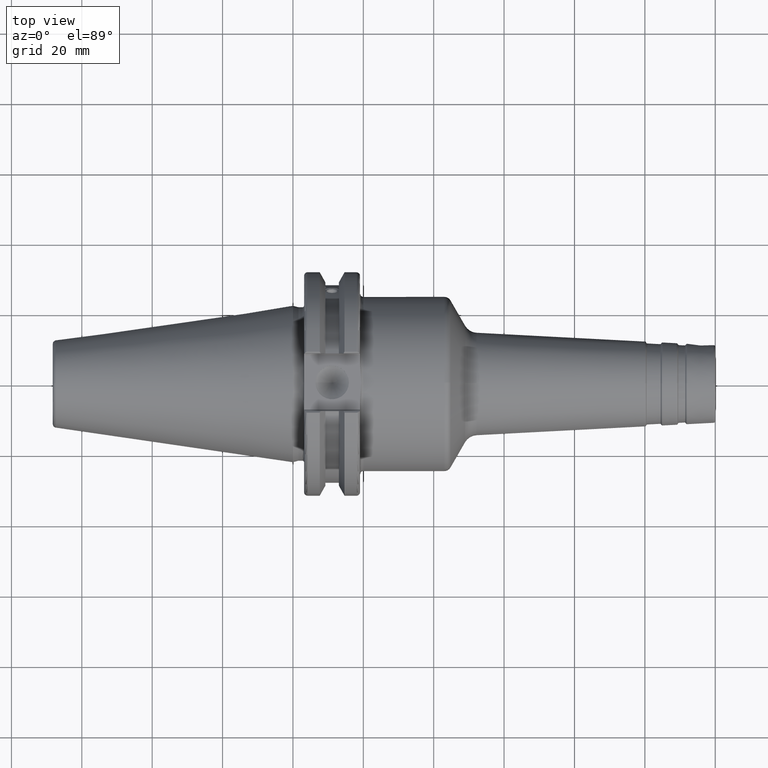
[diagram: clean part render]
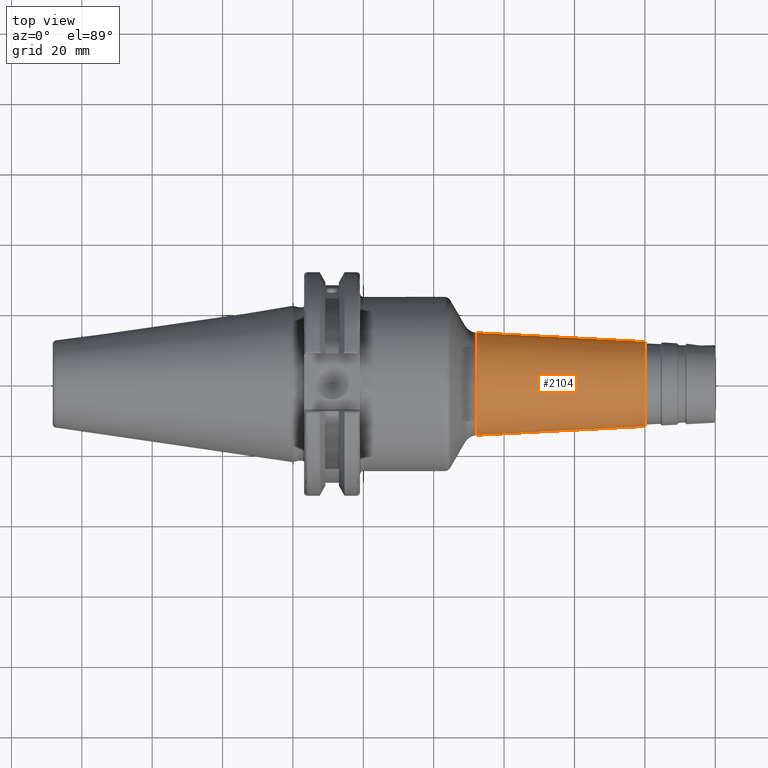
[diagram: same view with one face highlighted and labeled with its STEP entity id]
A machine part, top view. The second image highlights one B-rep face of the part: STEP entity #2104.
In plain terms, the highlighted conical surface has half-angle 3 deg.
Its self-contained STEP definition (entity closure, byte-faithful):
#193=FACE_OUTER_BOUND('',#303,.T.);
#303=EDGE_LOOP('',(#1448,#1449,#1450,#1451,#1452,#1453,#1454,#1455));
#423=LINE('',#3405,#524);
#524=VECTOR('',#2615,13.351721437991);
#640=CIRCLE('',#2256,14.5548801268603);
#641=CIRCLE('',#2257,14.5548801268603);
#642=CIRCLE('',#2258,14.5548801268603);
#643=CIRCLE('',#2260,12.0469847975392);
#644=CIRCLE('',#2261,12.0469847975392);
#645=CIRCLE('',#2262,12.0469847975392);
#820=VERTEX_POINT('',#3392);
#821=VERTEX_POINT('',#3394);
#822=VERTEX_POINT('',#3396);
#823=VERTEX_POINT('',#3400);
#824=VERTEX_POINT('',#3401);
#825=VERTEX_POINT('',#3403);
#1074=EDGE_CURVE('',#820,#821,#640,.T.);
#1075=EDGE_CURVE('',#821,#822,#641,.T.);
#1076=EDGE_CURVE('',#822,#820,#642,.T.);
#1077=EDGE_CURVE('',#823,#824,#643,.T.);
#1078=EDGE_CURVE('',#825,#823,#644,.T.);
#1079=EDGE_CURVE('',#825,#822,#423,.T.);
#1080=EDGE_CURVE('',#824,#825,#645,.T.);
#1448=ORIENTED_EDGE('',*,*,#1077,.F.);
#1449=ORIENTED_EDGE('',*,*,#1078,.F.);
#1450=ORIENTED_EDGE('',*,*,#1079,.T.);
#1451=ORIENTED_EDGE('',*,*,#1075,.F.);
#1452=ORIENTED_EDGE('',*,*,#1074,.F.);
#1453=ORIENTED_EDGE('',*,*,#1076,.F.);
#1454=ORIENTED_EDGE('',*,*,#1079,.F.);
#1455=ORIENTED_EDGE('',*,*,#1080,.F.);
#2074=CONICAL_SURFACE('',#2259,13.351721437991,0.0523598775598296);
#2104=ADVANCED_FACE('',(#193),#2074,.T.);
#2256=AXIS2_PLACEMENT_3D('',#3395,#2603,#2604);
#2257=AXIS2_PLACEMENT_3D('',#3397,#2605,#2606);
#2258=AXIS2_PLACEMENT_3D('',#3398,#2607,#2608);
#2259=AXIS2_PLACEMENT_3D('',#3399,#2609,#2610);
#2260=AXIS2_PLACEMENT_3D('',#3402,#2611,#2612);
#2261=AXIS2_PLACEMENT_3D('',#3404,#2613,#2614);
#2262=AXIS2_PLACEMENT_3D('',#3406,#2616,#2617);
#2603=DIRECTION('center_axis',(-1.,0.,0.));
#2604=DIRECTION('ref_axis',(0.,-1.,3.06161699786838E-17));
#2605=DIRECTION('center_axis',(-1.,0.,0.));
#2606=DIRECTION('ref_axis',(0.,-1.,3.06161699786838E-17));
#2607=DIRECTION('center_axis',(-1.,0.,0.));
#2608=DIRECTION('ref_axis',(0.,-1.,3.06161699786838E-17));
#2609=DIRECTION('center_axis',(-1.,0.,0.));
#2610=DIRECTION('ref_axis',(0.,1.,0.));
#2611=DIRECTION('center_axis',(1.,0.,0.));
#2612=DIRECTION('ref_axis',(0.,-1.,3.06161699786838E-17));
#2613=DIRECTION('center_axis',(1.,0.,0.));
#2614=DIRECTION('ref_axis',(0.,-1.,3.06161699786838E-17));
#2615=DIRECTION('',(-0.998629534754574,-0.0523359562429436,-6.40930612932368E-18));
#2616=DIRECTION('center_axis',(1.,0.,0.));
#2617=DIRECTION('ref_axis',(0.,-1.,3.06161699786838E-17));
#3392=CARTESIAN_POINT('',(52.1688463908891,-1.78245873593329E-15,14.5548801268603));
#3394=CARTESIAN_POINT('',(52.1688463908891,14.5548801268603,-4.45614683983323E-15));
#3395=CARTESIAN_POINT('Origin',(52.1688463908891,0.,-2.22807341991662E-15));
#3396=CARTESIAN_POINT('',(52.1688463908891,-14.5548801268603,-1.78245873593329E-15));
#3397=CARTESIAN_POINT('Origin',(52.1688463908891,0.,-2.22807341991662E-15));
#3398=CARTESIAN_POINT('Origin',(52.1688463908891,0.,-2.22807341991662E-15));
#3399=CARTESIAN_POINT('Origin',(75.1264817902327,0.,0.));
#3400=CARTESIAN_POINT('',(100.022339968181,12.0469847975392,-7.3766506858416E-16));
#3401=CARTESIAN_POINT('',(100.022339968181,-1.47533013716832E-15,12.0469847975392));
#3402=CARTESIAN_POINT('Origin',(100.022339968181,0.,-1.8441626714604E-15));
#3403=CARTESIAN_POINT('',(100.022339968181,-12.0469847975392,-1.47533013716832E-15));
#3404=CARTESIAN_POINT('Origin',(100.022339968181,0.,-1.8441626714604E-15));
#3405=CARTESIAN_POINT('',(75.1264817902327,-13.351721437991,-1.63511429221428E-15));
#3406=CARTESIAN_POINT('Origin',(100.022339968181,0.,-1.8441626714604E-15));